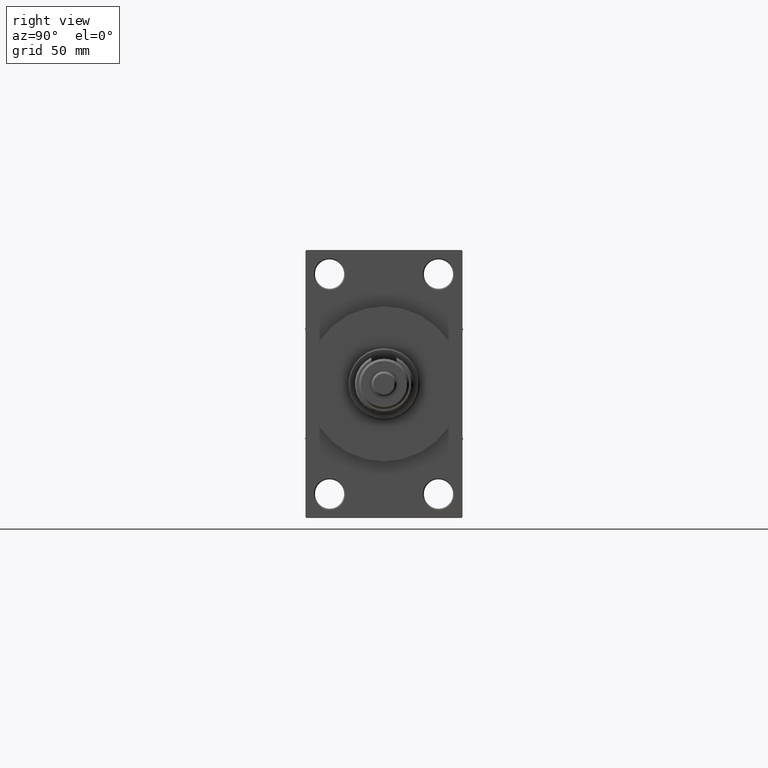
[diagram: clean part render]
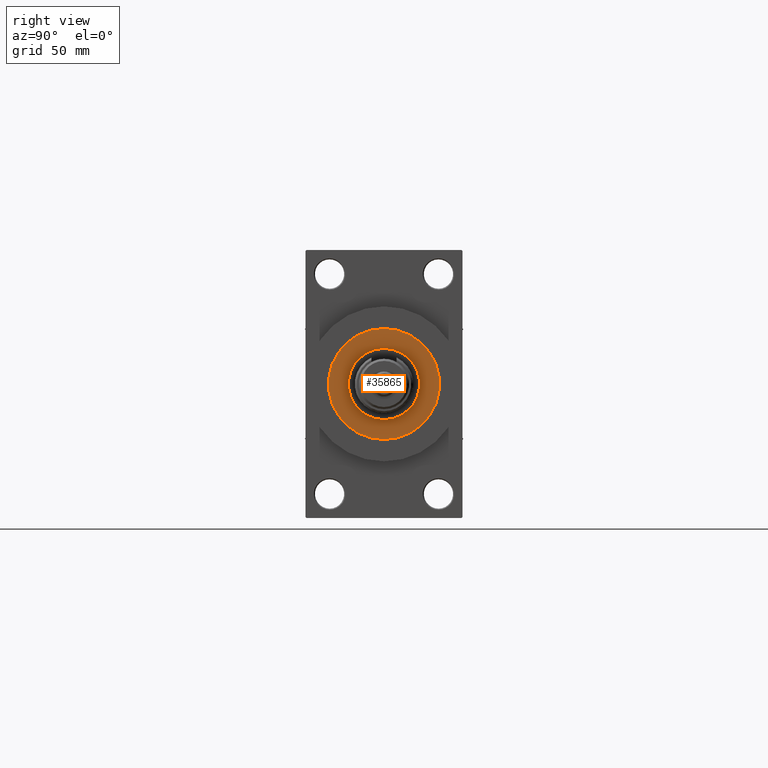
[diagram: same view with one face highlighted and labeled with its STEP entity id]
A machine part, right view. The second image highlights one B-rep face of the part: STEP entity #35865.
In plain terms, the highlighted planar face has unit normal (1, -0, -0).
Its self-contained STEP definition (entity closure, byte-faithful):
#2232 = EDGE_LOOP ( 'NONE', ( #24671, #2824 ) ) ;
#2824 = ORIENTED_EDGE ( 'NONE', *, *, #15484, .F. ) ;
#3103 = CARTESIAN_POINT ( 'NONE',  ( 0.000000000000000000, 0.000000000000000000, 43.25999999999999801 ) ) ;
#7145 = DIRECTION ( 'NONE',  ( 1.000000000000000000, 0.000000000000000000, 0.000000000000000000 ) ) ;
#9682 = DIRECTION ( 'NONE',  ( 0.000000000000000000, 0.000000000000000000, 1.000000000000000000 ) ) ;
#10471 = CIRCLE ( 'NONE', #47612, 17.00000000000000000 ) ;
#11560 = DIRECTION ( 'NONE',  ( 0.000000000000000000, 0.000000000000000000, 1.000000000000000000 ) ) ;
#12719 = FACE_BOUND ( 'NONE', #2232, .T. ) ;
#14386 = DIRECTION ( 'NONE',  ( 1.000000000000000000, 0.000000000000000000, 0.000000000000000000 ) ) ;
#14413 = EDGE_CURVE ( 'NONE', #25423, #24928, #29834, .T. ) ;
#15484 = EDGE_CURVE ( 'NONE', #23767, #42507, #10471, .T. ) ;
#16770 = DIRECTION ( 'NONE',  ( 1.000000000000000000, 0.000000000000000000, -0.000000000000000000 ) ) ;
#16905 = AXIS2_PLACEMENT_3D ( 'NONE', #43641, #24447, #23949 ) ;
#19283 = DIRECTION ( 'NONE',  ( 1.000000000000000000, 0.000000000000000000, 0.000000000000000000 ) ) ;
#20974 = CARTESIAN_POINT ( 'NONE',  ( 26.50000000000000355, 3.245314017740486554E-15, 43.25999999999999801 ) ) ;
#23767 = VERTEX_POINT ( 'NONE', #24165 ) ;
#23949 = DIRECTION ( 'NONE',  ( 1.000000000000000000, 0.000000000000000000, 0.000000000000000000 ) ) ;
#24165 = CARTESIAN_POINT ( 'NONE',  ( 17.00000000000000000, 2.081899558550500280E-15, 43.25999999999999801 ) ) ;
#24447 = DIRECTION ( 'NONE',  ( 0.000000000000000000, 0.000000000000000000, 1.000000000000000000 ) ) ;
#24671 = ORIENTED_EDGE ( 'NONE', *, *, #41574, .F. ) ;
#24928 = VERTEX_POINT ( 'NONE', #25395 ) ;
#25395 = CARTESIAN_POINT ( 'NONE',  ( -26.50000000000000355, 0.000000000000000000, 43.25999999999999801 ) ) ;
#25423 = VERTEX_POINT ( 'NONE', #20974 ) ;
#25587 = CIRCLE ( 'NONE', #27200, 26.50000000000000355 ) ;
#26193 = AXIS2_PLACEMENT_3D ( 'NONE', #44324, #9682, #16770 ) ;
#27200 = AXIS2_PLACEMENT_3D ( 'NONE', #31170, #38988, #19283 ) ;
#29222 = EDGE_LOOP ( 'NONE', ( #47412, #39105 ) ) ;
#29834 = CIRCLE ( 'NONE', #16905, 26.50000000000000355 ) ;
#31170 = CARTESIAN_POINT ( 'NONE',  ( 0.000000000000000000, 0.000000000000000000, 43.25999999999999801 ) ) ;
#32701 = FACE_OUTER_BOUND ( 'NONE', #29222, .T. ) ;
#33601 = CARTESIAN_POINT ( 'NONE',  ( 0.000000000000000000, 0.000000000000000000, 43.25999999999999801 ) ) ;
#35865 = ADVANCED_FACE ( 'NONE', ( #12719, #32701 ), #35991, .T. ) ;
#35991 = PLANE ( 'NONE',  #26193 ) ;
#38988 = DIRECTION ( 'NONE',  ( 0.000000000000000000, 0.000000000000000000, 1.000000000000000000 ) ) ;
#39105 = ORIENTED_EDGE ( 'NONE', *, *, #14413, .T. ) ;
#41574 = EDGE_CURVE ( 'NONE', #42507, #23767, #42513, .T. ) ;
#41693 = EDGE_CURVE ( 'NONE', #24928, #25423, #25587, .T. ) ;
#41784 = DIRECTION ( 'NONE',  ( 0.000000000000000000, 0.000000000000000000, 1.000000000000000000 ) ) ;
#42038 = CARTESIAN_POINT ( 'NONE',  ( -17.00000000000000000, 0.000000000000000000, 43.25999999999999801 ) ) ;
#42507 = VERTEX_POINT ( 'NONE', #42038 ) ;
#42513 = CIRCLE ( 'NONE', #49783, 17.00000000000000000 ) ;
#43641 = CARTESIAN_POINT ( 'NONE',  ( 0.000000000000000000, 0.000000000000000000, 43.25999999999999801 ) ) ;
#44324 = CARTESIAN_POINT ( 'NONE',  ( 0.000000000000000000, 0.000000000000000000, 43.25999999999999801 ) ) ;
#47412 = ORIENTED_EDGE ( 'NONE', *, *, #41693, .T. ) ;
#47612 = AXIS2_PLACEMENT_3D ( 'NONE', #33601, #11560, #14386 ) ;
#49783 = AXIS2_PLACEMENT_3D ( 'NONE', #3103, #41784, #7145 ) ;